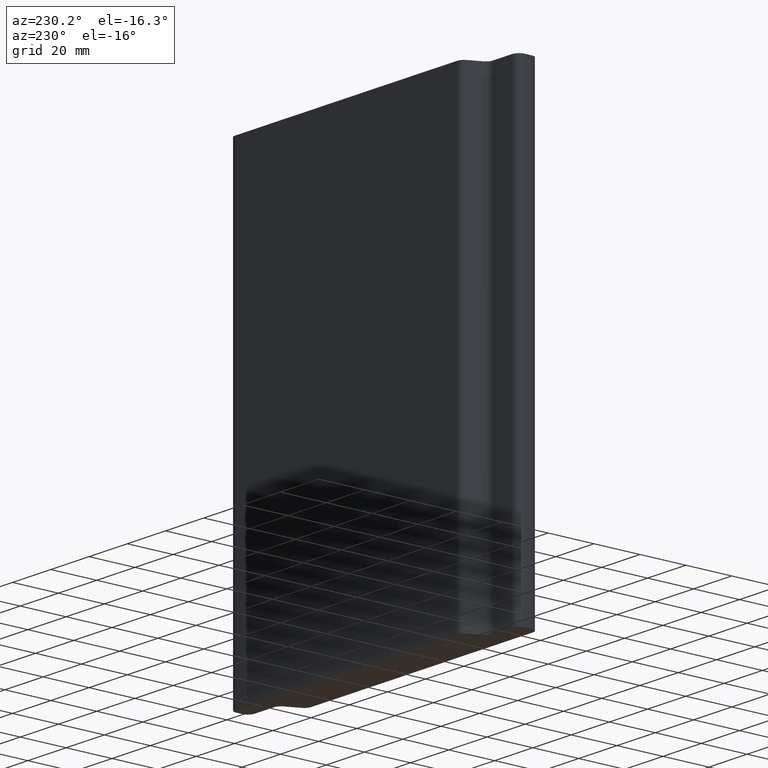
[diagram: clean part render]
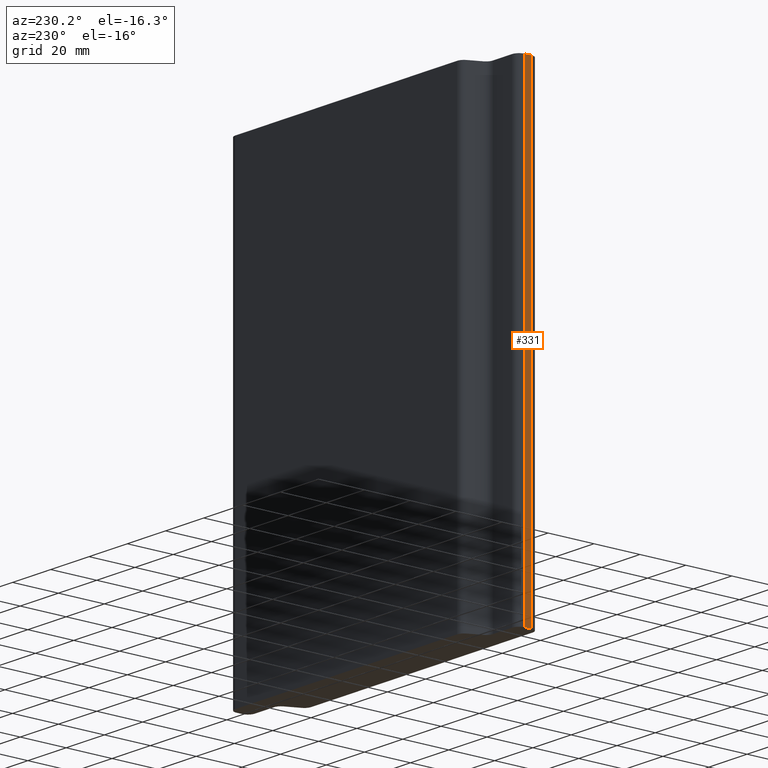
[diagram: same view with one face highlighted and labeled with its STEP entity id]
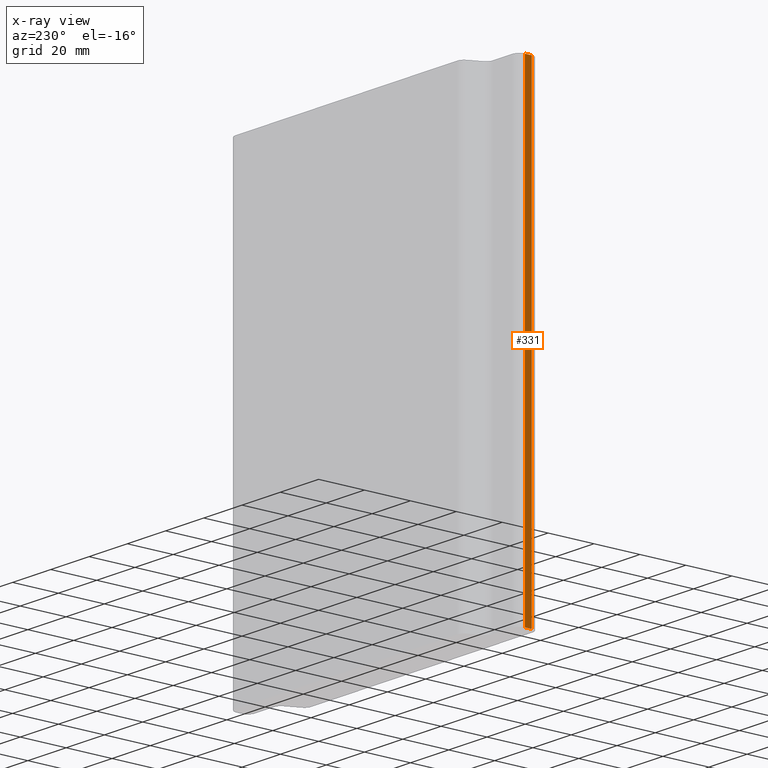
[diagram: x-ray of the same camera — body ghosted, the highlighted face saturated]
A machine part, auxiliary view. The second image highlights one B-rep face of the part: STEP entity #331.
The next image is the same camera in x-ray: the body ghosted, the highlighted face saturated — about 0% of this face is hidden behind the body in this view.
In plain terms, the highlighted planar face has unit normal (-1, -0, 0).
Its self-contained STEP definition (entity closure, byte-faithful):
#45=FACE_OUTER_BOUND('',#63,.T.);
#63=EDGE_LOOP('',(#243,#244,#245,#246));
#87=LINE('',#532,#119);
#88=LINE('',#535,#120);
#89=LINE('',#537,#121);
#90=LINE('',#538,#122);
#119=VECTOR('',#429,10.);
#120=VECTOR('',#432,10.);
#121=VECTOR('',#433,10.);
#122=VECTOR('',#434,10.);
#151=VERTEX_POINT('',#528);
#152=VERTEX_POINT('',#530);
#153=VERTEX_POINT('',#534);
#154=VERTEX_POINT('',#536);
#189=EDGE_CURVE('',#151,#152,#87,.T.);
#190=EDGE_CURVE('',#153,#151,#88,.T.);
#191=EDGE_CURVE('',#154,#152,#89,.T.);
#192=EDGE_CURVE('',#153,#154,#90,.T.);
#243=ORIENTED_EDGE('',*,*,#190,.T.);
#244=ORIENTED_EDGE('',*,*,#189,.T.);
#245=ORIENTED_EDGE('',*,*,#191,.F.);
#246=ORIENTED_EDGE('',*,*,#192,.F.);
#318=PLANE('',#369);
#331=ADVANCED_FACE('',(#45),#318,.T.);
#369=AXIS2_PLACEMENT_3D('',#533,#430,#431);
#429=DIRECTION('',(0.,0.,1.));
#430=DIRECTION('center_axis',(-1.,-4.44089218590522E-14,0.));
#431=DIRECTION('ref_axis',(4.44089218590522E-14,-1.,0.));
#432=DIRECTION('',(4.44089218590522E-14,-1.,0.));
#433=DIRECTION('',(4.44089218590522E-14,-1.,0.));
#434=DIRECTION('',(0.,0.,1.));
#528=CARTESIAN_POINT('',(-78.9776404716128,3.00000008330803,0.));
#530=CARTESIAN_POINT('',(-78.9776404716128,3.00000008330803,200.));
#532=CARTESIAN_POINT('',(-78.9776404716128,3.00000008330803,0.));
#533=CARTESIAN_POINT('Origin',(-78.9776404716129,6.00000002426274,0.));
#534=CARTESIAN_POINT('',(-78.9776404716129,6.00000002426274,0.));
#535=CARTESIAN_POINT('',(-78.9776404716129,6.00000002426274,0.));
#536=CARTESIAN_POINT('',(-78.9776404716129,6.00000002426274,200.));
#537=CARTESIAN_POINT('',(-78.9776404716129,6.00000002426274,200.));
#538=CARTESIAN_POINT('',(-78.9776404716129,6.00000002426274,0.));